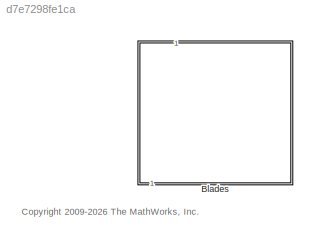
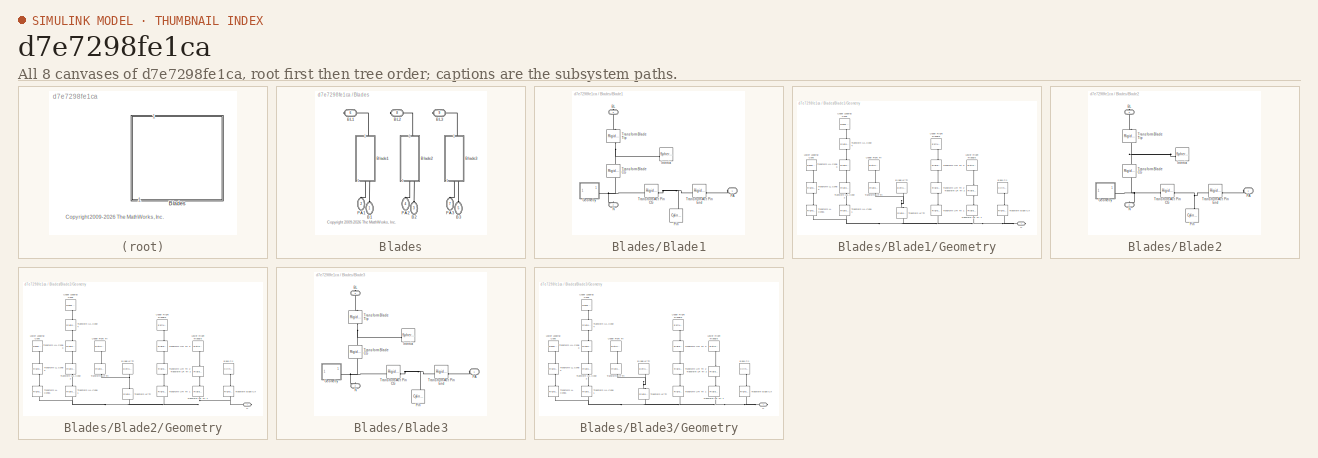
[diagram: thumbnail index - all 8 canvases of the model, root first then tree order]
MODEL slx_d7e7298fe1ca
KIND library
CONFIG EnableMultiTasking = on
CONFIG SolverName = ode45
BLOCK [SubSystem] Blades
  NameLocation = left
  ShowPortLabels = FromPortBlockName
BLOCK [PMIOPort] Blades/B1
  NameLocation = right
  Side = Left
  Tag = PMCPort
BLOCK [PMIOPort] Blades/B2
  NameLocation = right
  Port = 3
  Side = Left
  Tag = PMCPort
BLOCK [PMIOPort] Blades/B3
  NameLocation = right
  Port = 5
  Side = Left
  Tag = PMCPort
BLOCK [PMIOPort] Blades/BL1
  Port = 6
  Side = Right
  Tag = PMCPort
BLOCK [PMIOPort] Blades/BL2
  Port = 8
  Side = Right
  Tag = PMCPort
BLOCK [PMIOPort] Blades/BL3
  Port = 9
  Side = Right
  Tag = PMCPort
BLOCK [SubSystem] Blades/Blade1
  NameLocation = right
BLOCK [PMIOPort] Blades/Blade1/BL
  NameLocation = right
  Port = 3
  Side = Right
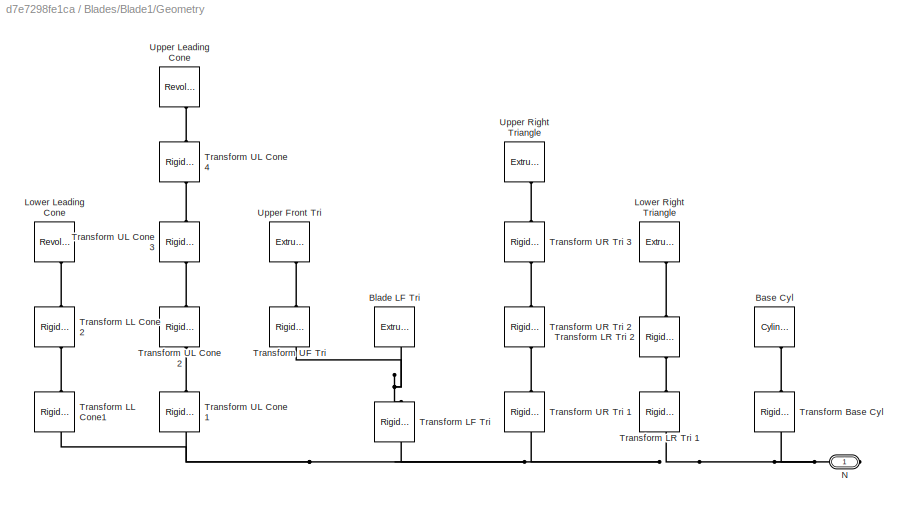
BLOCK [SubSystem] Blades/Blade1/Geometry
BLOCK [Reference] Blades/Blade1/Geometry/ Upper Leading Cone  REF=sm_lib/Body Elements/Revolved Solid
  NameLocation = left
  SourceBlock = sm_lib/Body Elements/Revolved Solid
  SourceType = Revolved Solid
BLOCK [Reference] Blades/Blade1/Geometry/Base Cyl  REF=sm_lib/Body Elements/Cylindrical Solid
  NameLocation = left
  SourceBlock = sm_lib/Body Elements/Cylindrical Solid
  SourceType = Cylindrical Solid
BLOCK [Reference] Blades/Blade1/Geometry/Blade LF Tri  REF=sm_lib/Body Elements/Extruded Solid
  NameLocation = left
  SourceBlock = sm_lib/Body Elements/Extruded Solid
  SourceType = Extruded Solid
BLOCK [Reference] Blades/Blade1/Geometry/Lower Leading Cone  REF=sm_lib/Body Elements/Revolved Solid
  NameLocation = left
  SourceBlock = sm_lib/Body Elements/Revolved Solid
  SourceType = Revolved Solid
BLOCK [Reference] Blades/Blade1/Geometry/Lower Right Triangle  REF=sm_lib/Body Elements/Extruded Solid
  NameLocation = left
  SourceBlock = sm_lib/Body Elements/Extruded Solid
  SourceType = Extruded Solid
BLOCK [PMIOPort] Blades/Blade1/Geometry/N
  Side = Right
BLOCK [Reference] Blades/Blade1/Geometry/Transform Base Cyl  REF=sm_lib/Frames and
Transforms/Rigid
Transform
  NameLocation = left
  SourceBlock = sm_lib/Frames and\nTransforms/Rigid\nTransform
  SourceType = Rigid\nTransform
BLOCK [Reference] Blades/Blade1/Geometry/Transform LF Tri  REF=sm_lib/Frames and
Transforms/Rigid
Transform
  NameLocation = left
  SourceBlock = sm_lib/Frames and\nTransforms/Rigid\nTransform
  SourceType = Rigid\nTransform
BLOCK [Reference] Blades/Blade1/Geometry/Transform LL Cone 2  REF=sm_lib/Frames and
Transforms/Rigid
Transform
  NameLocation = left
  SourceBlock = sm_lib/Frames and\nTransforms/Rigid\nTransform
  SourceType = Rigid\nTransform
BLOCK [Reference] Blades/Blade1/Geometry/Transform LL Cone1  REF=sm_lib/Frames and
Transforms/Rigid
Transform
  NameLocation = left
  SourceBlock = sm_lib/Frames and\nTransforms/Rigid\nTransform
  SourceType = Rigid\nTransform
BLOCK [Reference] Blades/Blade1/Geometry/Transform LR Tri 1  REF=sm_lib/Frames and
Transforms/Rigid
Transform
  NameLocation = left
  SourceBlock = sm_lib/Frames and\nTransforms/Rigid\nTransform
  SourceType = Rigid\nTransform
BLOCK [Reference] Blades/Blade1/Geometry/Transform LR Tri 2  REF=sm_lib/Frames and
Transforms/Rigid
Transform
  NameLocation = left
  SourceBlock = sm_lib/Frames and\nTransforms/Rigid\nTransform
  SourceType = Rigid\nTransform
BLOCK [Reference] Blades/Blade1/Geometry/Transform UF Tri  REF=sm_lib/Frames and
Transforms/Rigid
Transform
  NameLocation = left
  SourceBlock = sm_lib/Frames and\nTransforms/Rigid\nTransform
  SourceType = Rigid\nTransform
BLOCK [Reference] Blades/Blade1/Geometry/Transform UL Cone 1  REF=sm_lib/Frames and
Transforms/Rigid
Transform
  NameLocation = left
  SourceBlock = sm_lib/Frames and\nTransforms/Rigid\nTransform
  SourceType = Rigid\nTransform
BLOCK [Reference] Blades/Blade1/Geometry/Transform UL Cone 2  REF=sm_lib/Frames and
Transforms/Rigid
Transform
  NameLocation = left
  SourceBlock = sm_lib/Frames and\nTransforms/Rigid\nTransform
  SourceType = Rigid\nTransform
BLOCK [Reference] Blades/Blade1/Geometry/Transform UL Cone 3  REF=sm_lib/Frames and
Transforms/Rigid
Transform
  NameLocation = left
  SourceBlock = sm_lib/Frames and\nTransforms/Rigid\nTransform
  SourceType = Rigid\nTransform
BLOCK [Reference] Blades/Blade1/Geometry/Transform UL Cone 4  REF=sm_lib/Frames and
Transforms/Rigid
Transform
  NameLocation = left
  SourceBlock = sm_lib/Frames and\nTransforms/Rigid\nTransform
  SourceType = Rigid\nTransform
BLOCK [Reference] Blades/Blade1/Geometry/Transform UR Tri 1  REF=sm_lib/Frames and
Transforms/Rigid
Transform
  NameLocation = left
  SourceBlock = sm_lib/Frames and\nTransforms/Rigid\nTransform
  SourceType = Rigid\nTransform
BLOCK [Reference] Blades/Blade1/Geometry/Transform UR Tri 2  REF=sm_lib/Frames and
Transforms/Rigid
Transform
  NameLocation = left
  SourceBlock = sm_lib/Frames and\nTransforms/Rigid\nTransform
  SourceType = Rigid\nTransform
BLOCK [Reference] Blades/Blade1/Geometry/Transform UR Tri 3  REF=sm_lib/Frames and
Transforms/Rigid
Transform
  NameLocation = left
  SourceBlock = sm_lib/Frames and\nTransforms/Rigid\nTransform
  SourceType = Rigid\nTransform
BLOCK [Reference] Blades/Blade1/Geometry/Upper Front Tri  REF=sm_lib/Body Elements/Extruded Solid
  NameLocation = left
  SourceBlock = sm_lib/Body Elements/Extruded Solid
  SourceType = Extruded Solid
BLOCK [Reference] Blades/Blade1/Geometry/Upper Right Triangle  REF=sm_lib/Body Elements/Extruded Solid
  NameLocation = left
  SourceBlock = sm_lib/Body Elements/Extruded Solid
  SourceType = Extruded Solid
BLOCK [Reference] Blades/Blade1/Inertia  REF=sm_lib/Body Elements/Spherical Solid
  NameLocation = top
  SourceBlock = sm_lib/Body Elements/Spherical Solid
  SourceType = Spherical Solid
BLOCK [PMIOPort] Blades/Blade1/N
  NameLocation = right
  Port = 2
  Side = Left
BLOCK [PMIOPort] Blades/Blade1/PA
  Side = Left
BLOCK [Reference] Blades/Blade1/Pin  REF=sm_lib/Body Elements/Cylindrical Solid
  NameLocation = right
  SourceBlock = sm_lib/Body Elements/Cylindrical Solid
  SourceType = Cylindrical Solid
BLOCK [Reference] Blades/Blade1/Transform Act Pin CG  REF=sm_lib/Frames and
Transforms/Rigid
Transform
  SourceBlock = sm_lib/Frames and\nTransforms/Rigid\nTransform
  SourceType = Rigid\nTransform
BLOCK [Reference] Blades/Blade1/Transform Act Pin End  REF=sm_lib/Frames and
Transforms/Rigid
Transform
  SourceBlock = sm_lib/Frames and\nTransforms/Rigid\nTransform
  SourceType = Rigid\nTransform
BLOCK [Reference] Blades/Blade1/Transform Blade CG  REF=sm_lib/Frames and
Transforms/Rigid
Transform
  NameLocation = right
  SourceBlock = sm_lib/Frames and\nTransforms/Rigid\nTransform
  SourceType = Rigid\nTransform
BLOCK [Reference] Blades/Blade1/Transform Blade Tip  REF=sm_lib/Frames and
Transforms/Rigid
Transform
  NameLocation = right
  SourceBlock = sm_lib/Frames and\nTransforms/Rigid\nTransform
  SourceType = Rigid\nTransform
BLOCK [SubSystem] Blades/Blade2
  NameLocation = right
BLOCK [PMIOPort] Blades/Blade2/BL
  NameLocation = right
  Port = 3
  Side = Right
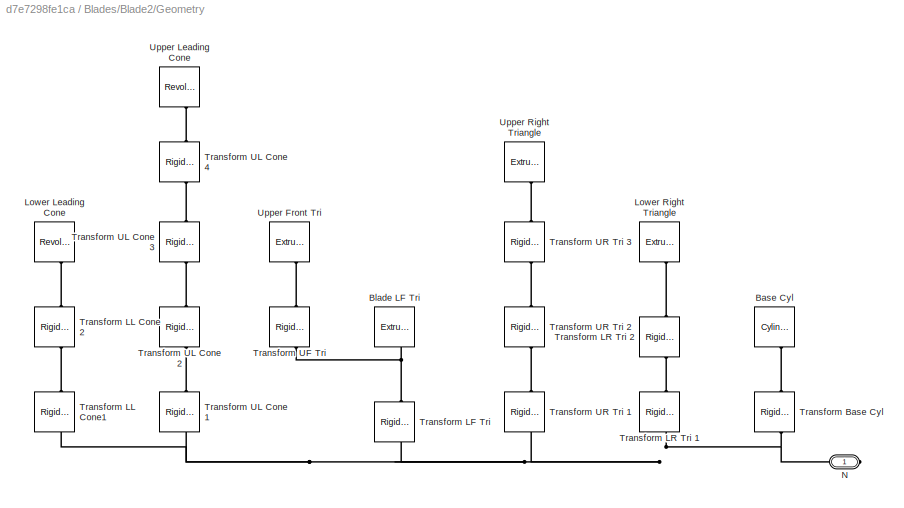
BLOCK [SubSystem] Blades/Blade2/Geometry
BLOCK [Reference] Blades/Blade2/Geometry/ Upper Leading Cone  REF=sm_lib/Body Elements/Revolved Solid
  NameLocation = left
  SourceBlock = sm_lib/Body Elements/Revolved Solid
  SourceType = Revolved Solid
BLOCK [Reference] Blades/Blade2/Geometry/Base Cyl  REF=sm_lib/Body Elements/Cylindrical Solid
  NameLocation = left
  SourceBlock = sm_lib/Body Elements/Cylindrical Solid
  SourceType = Cylindrical Solid
BLOCK [Reference] Blades/Blade2/Geometry/Blade LF Tri  REF=sm_lib/Body Elements/Extruded Solid
  NameLocation = left
  SourceBlock = sm_lib/Body Elements/Extruded Solid
  SourceType = Extruded Solid
BLOCK [Reference] Blades/Blade2/Geometry/Lower Leading Cone  REF=sm_lib/Body Elements/Revolved Solid
  NameLocation = left
  SourceBlock = sm_lib/Body Elements/Revolved Solid
  SourceType = Revolved Solid
BLOCK [Reference] Blades/Blade2/Geometry/Lower Right Triangle  REF=sm_lib/Body Elements/Extruded Solid
  NameLocation = left
  SourceBlock = sm_lib/Body Elements/Extruded Solid
  SourceType = Extruded Solid
BLOCK [PMIOPort] Blades/Blade2/Geometry/N
  Side = Right
BLOCK [Reference] Blades/Blade2/Geometry/Transform Base Cyl  REF=sm_lib/Frames and
Transforms/Rigid
Transform
  NameLocation = left
  SourceBlock = sm_lib/Frames and\nTransforms/Rigid\nTransform
  SourceType = Rigid\nTransform
BLOCK [Reference] Blades/Blade2/Geometry/Transform LF Tri  REF=sm_lib/Frames and
Transforms/Rigid
Transform
  NameLocation = left
  SourceBlock = sm_lib/Frames and\nTransforms/Rigid\nTransform
  SourceType = Rigid\nTransform
BLOCK [Reference] Blades/Blade2/Geometry/Transform LL Cone 2  REF=sm_lib/Frames and
Transforms/Rigid
Transform
  NameLocation = left
  SourceBlock = sm_lib/Frames and\nTransforms/Rigid\nTransform
  SourceType = Rigid\nTransform
BLOCK [Reference] Blades/Blade2/Geometry/Transform LL Cone1  REF=sm_lib/Frames and
Transforms/Rigid
Transform
  NameLocation = left
  SourceBlock = sm_lib/Frames and\nTransforms/Rigid\nTransform
  SourceType = Rigid\nTransform
BLOCK [Reference] Blades/Blade2/Geometry/Transform LR Tri 1  REF=sm_lib/Frames and
Transforms/Rigid
Transform
  NameLocation = left
  SourceBlock = sm_lib/Frames and\nTransforms/Rigid\nTransform
  SourceType = Rigid\nTransform
BLOCK [Reference] Blades/Blade2/Geometry/Transform LR Tri 2  REF=sm_lib/Frames and
Transforms/Rigid
Transform
  NameLocation = left
  SourceBlock = sm_lib/Frames and\nTransforms/Rigid\nTransform
  SourceType = Rigid\nTransform
BLOCK [Reference] Blades/Blade2/Geometry/Transform UF Tri  REF=sm_lib/Frames and
Transforms/Rigid
Transform
  NameLocation = left
  SourceBlock = sm_lib/Frames and\nTransforms/Rigid\nTransform
  SourceType = Rigid\nTransform
BLOCK [Reference] Blades/Blade2/Geometry/Transform UL Cone 1  REF=sm_lib/Frames and
Transforms/Rigid
Transform
  NameLocation = left
  SourceBlock = sm_lib/Frames and\nTransforms/Rigid\nTransform
  SourceType = Rigid\nTransform
BLOCK [Reference] Blades/Blade2/Geometry/Transform UL Cone 2  REF=sm_lib/Frames and
Transforms/Rigid
Transform
  NameLocation = left
  SourceBlock = sm_lib/Frames and\nTransforms/Rigid\nTransform
  SourceType = Rigid\nTransform
BLOCK [Reference] Blades/Blade2/Geometry/Transform UL Cone 3  REF=sm_lib/Frames and
Transforms/Rigid
Transform
  NameLocation = left
  SourceBlock = sm_lib/Frames and\nTransforms/Rigid\nTransform
  SourceType = Rigid\nTransform
BLOCK [Reference] Blades/Blade2/Geometry/Transform UL Cone 4  REF=sm_lib/Frames and
Transforms/Rigid
Transform
  NameLocation = left
  SourceBlock = sm_lib/Frames and\nTransforms/Rigid\nTransform
  SourceType = Rigid\nTransform
BLOCK [Reference] Blades/Blade2/Geometry/Transform UR Tri 1  REF=sm_lib/Frames and
Transforms/Rigid
Transform
  NameLocation = left
  SourceBlock = sm_lib/Frames and\nTransforms/Rigid\nTransform
  SourceType = Rigid\nTransform
BLOCK [Reference] Blades/Blade2/Geometry/Transform UR Tri 2  REF=sm_lib/Frames and
Transforms/Rigid
Transform
  NameLocation = left
  SourceBlock = sm_lib/Frames and\nTransforms/Rigid\nTransform
  SourceType = Rigid\nTransform
BLOCK [Reference] Blades/Blade2/Geometry/Transform UR Tri 3  REF=sm_lib/Frames and
Transforms/Rigid
Transform
  NameLocation = left
  SourceBlock = sm_lib/Frames and\nTransforms/Rigid\nTransform
  SourceType = Rigid\nTransform
BLOCK [Reference] Blades/Blade2/Geometry/Upper Front Tri  REF=sm_lib/Body Elements/Extruded Solid
  NameLocation = left
  SourceBlock = sm_lib/Body Elements/Extruded Solid
  SourceType = Extruded Solid
BLOCK [Reference] Blades/Blade2/Geometry/Upper Right Triangle  REF=sm_lib/Body Elements/Extruded Solid
  NameLocation = left
  SourceBlock = sm_lib/Body Elements/Extruded Solid
  SourceType = Extruded Solid
BLOCK [Reference] Blades/Blade2/Inertia  REF=sm_lib/Body Elements/Spherical Solid
  NameLocation = top
  SourceBlock = sm_lib/Body Elements/Spherical Solid
  SourceType = Spherical Solid
BLOCK [PMIOPort] Blades/Blade2/N
  NameLocation = right
  Port = 2
  Side = Left
BLOCK [PMIOPort] Blades/Blade2/PA
  Side = Left
BLOCK [Reference] Blades/Blade2/Pin  REF=sm_lib/Body Elements/Cylindrical Solid
  NameLocation = right
  SourceBlock = sm_lib/Body Elements/Cylindrical Solid
  SourceType = Cylindrical Solid
BLOCK [Reference] Blades/Blade2/Transform Act Pin CG  REF=sm_lib/Frames and
Transforms/Rigid
Transform
  SourceBlock = sm_lib/Frames and\nTransforms/Rigid\nTransform
  SourceType = Rigid\nTransform
BLOCK [Reference] Blades/Blade2/Transform Act Pin End  REF=sm_lib/Frames and
Transforms/Rigid
Transform
  SourceBlock = sm_lib/Frames and\nTransforms/Rigid\nTransform
  SourceType = Rigid\nTransform
BLOCK [Reference] Blades/Blade2/Transform Blade CG  REF=sm_lib/Frames and
Transforms/Rigid
Transform
  NameLocation = right
  SourceBlock = sm_lib/Frames and\nTransforms/Rigid\nTransform
  SourceType = Rigid\nTransform
BLOCK [Reference] Blades/Blade2/Transform Blade Tip  REF=sm_lib/Frames and
Transforms/Rigid
Transform
  NameLocation = right
  SourceBlock = sm_lib/Frames and\nTransforms/Rigid\nTransform
  SourceType = Rigid\nTransform
BLOCK [SubSystem] Blades/Blade3
  NameLocation = right
BLOCK [PMIOPort] Blades/Blade3/BL
  NameLocation = right
  Port = 3
  Side = Right
BLOCK [SubSystem] Blades/Blade3/Geometry
BLOCK [Reference] Blades/Blade3/Geometry/ Upper Leading Cone  REF=sm_lib/Body Elements/Revolved Solid
  NameLocation = left
  SourceBlock = sm_lib/Body Elements/Revolved Solid
  SourceType = Revolved Solid
BLOCK [Reference] Blades/Blade3/Geometry/Base Cyl  REF=sm_lib/Body Elements/Cylindrical Solid
  NameLocation = left
  SourceBlock = sm_lib/Body Elements/Cylindrical Solid
  SourceType = Cylindrical Solid
BLOCK [Reference] Blades/Blade3/Geometry/Blade LF Tri  REF=sm_lib/Body Elements/Extruded Solid
  NameLocation = left
  SourceBlock = sm_lib/Body Elements/Extruded Solid
  SourceType = Extruded Solid
BLOCK [Reference] Blades/Blade3/Geometry/Lower Leading Cone  REF=sm_lib/Body Elements/Revolved Solid
  NameLocation = left
  SourceBlock = sm_lib/Body Elements/Revolved Solid
  SourceType = Revolved Solid
BLOCK [Reference] Blades/Blade3/Geometry/Lower Right Triangle  REF=sm_lib/Body Elements/Extruded Solid
  NameLocation = left
  SourceBlock = sm_lib/Body Elements/Extruded Solid
  SourceType = Extruded Solid
BLOCK [PMIOPort] Blades/Blade3/Geometry/N
  Side = Right
BLOCK [Reference] Blades/Blade3/Geometry/Transform Base Cyl  REF=sm_lib/Frames and
Transforms/Rigid
Transform
  NameLocation = left
  SourceBlock = sm_lib/Frames and\nTransforms/Rigid\nTransform
  SourceType = Rigid\nTransform
BLOCK [Reference] Blades/Blade3/Geometry/Transform LF Tri  REF=sm_lib/Frames and
Transforms/Rigid
Transform
  NameLocation = left
  SourceBlock = sm_lib/Frames and\nTransforms/Rigid\nTransform
  SourceType = Rigid\nTransform
BLOCK [Reference] Blades/Blade3/Geometry/Transform LL Cone 2  REF=sm_lib/Frames and
Transforms/Rigid
Transform
  NameLocation = left
  SourceBlock = sm_lib/Frames and\nTransforms/Rigid\nTransform
  SourceType = Rigid\nTransform
BLOCK [Reference] Blades/Blade3/Geometry/Transform LL Cone1  REF=sm_lib/Frames and
Transforms/Rigid
Transform
  NameLocation = left
  SourceBlock = sm_lib/Frames and\nTransforms/Rigid\nTransform
  SourceType = Rigid\nTransform
BLOCK [Reference] Blades/Blade3/Geometry/Transform LR Tri 1  REF=sm_lib/Frames and
Transforms/Rigid
Transform
  NameLocation = left
  SourceBlock = sm_lib/Frames and\nTransforms/Rigid\nTransform
  SourceType = Rigid\nTransform
BLOCK [Reference] Blades/Blade3/Geometry/Transform LR Tri 2  REF=sm_lib/Frames and
Transforms/Rigid
Transform
  NameLocation = left
  SourceBlock = sm_lib/Frames and\nTransforms/Rigid\nTransform
  SourceType = Rigid\nTransform
BLOCK [Reference] Blades/Blade3/Geometry/Transform UF Tri  REF=sm_lib/Frames and
Transforms/Rigid
Transform
  NameLocation = left
  SourceBlock = sm_lib/Frames and\nTransforms/Rigid\nTransform
  SourceType = Rigid\nTransform
BLOCK [Reference] Blades/Blade3/Geometry/Transform UL Cone 1  REF=sm_lib/Frames and
Transforms/Rigid
Transform
  NameLocation = left
  SourceBlock = sm_lib/Frames and\nTransforms/Rigid\nTransform
  SourceType = Rigid\nTransform
BLOCK [Reference] Blades/Blade3/Geometry/Transform UL Cone 2  REF=sm_lib/Frames and
Transforms/Rigid
Transform
  NameLocation = left
  SourceBlock = sm_lib/Frames and\nTransforms/Rigid\nTransform
  SourceType = Rigid\nTransform
BLOCK [Reference] Blades/Blade3/Geometry/Transform UL Cone 3  REF=sm_lib/Frames and
Transforms/Rigid
Transform
  NameLocation = left
  SourceBlock = sm_lib/Frames and\nTransforms/Rigid\nTransform
  SourceType = Rigid\nTransform
BLOCK [Reference] Blades/Blade3/Geometry/Transform UL Cone 4  REF=sm_lib/Frames and
Transforms/Rigid
Transform
  NameLocation = left
  SourceBlock = sm_lib/Frames and\nTransforms/Rigid\nTransform
  SourceType = Rigid\nTransform
BLOCK [Reference] Blades/Blade3/Geometry/Transform UR Tri 1  REF=sm_lib/Frames and
Transforms/Rigid
Transform
  NameLocation = left
  SourceBlock = sm_lib/Frames and\nTransforms/Rigid\nTransform
  SourceType = Rigid\nTransform
BLOCK [Reference] Blades/Blade3/Geometry/Transform UR Tri 2  REF=sm_lib/Frames and
Transforms/Rigid
Transform
  NameLocation = left
  SourceBlock = sm_lib/Frames and\nTransforms/Rigid\nTransform
  SourceType = Rigid\nTransform
BLOCK [Reference] Blades/Blade3/Geometry/Transform UR Tri 3  REF=sm_lib/Frames and
Transforms/Rigid
Transform
  NameLocation = left
  SourceBlock = sm_lib/Frames and\nTransforms/Rigid\nTransform
  SourceType = Rigid\nTransform
BLOCK [Reference] Blades/Blade3/Geometry/Upper Front Tri  REF=sm_lib/Body Elements/Extruded Solid
  NameLocation = left
  SourceBlock = sm_lib/Body Elements/Extruded Solid
  SourceType = Extruded Solid
BLOCK [Reference] Blades/Blade3/Geometry/Upper Right Triangle  REF=sm_lib/Body Elements/Extruded Solid
  NameLocation = left
  SourceBlock = sm_lib/Body Elements/Extruded Solid
  SourceType = Extruded Solid
BLOCK [Reference] Blades/Blade3/Inertia  REF=sm_lib/Body Elements/Spherical Solid
  NameLocation = top
  SourceBlock = sm_lib/Body Elements/Spherical Solid
  SourceType = Spherical Solid
BLOCK [PMIOPort] Blades/Blade3/N
  NameLocation = right
  Port = 2
  Side = Left
BLOCK [PMIOPort] Blades/Blade3/PA
  Side = Left
BLOCK [Reference] Blades/Blade3/Pin  REF=sm_lib/Body Elements/Cylindrical Solid
  NameLocation = right
  SourceBlock = sm_lib/Body Elements/Cylindrical Solid
  SourceType = Cylindrical Solid
BLOCK [Reference] Blades/Blade3/Transform Act Pin CG  REF=sm_lib/Frames and
Transforms/Rigid
Transform
  SourceBlock = sm_lib/Frames and\nTransforms/Rigid\nTransform
  SourceType = Rigid\nTransform
BLOCK [Reference] Blades/Blade3/Transform Act Pin End  REF=sm_lib/Frames and
Transforms/Rigid
Transform
  SourceBlock = sm_lib/Frames and\nTransforms/Rigid\nTransform
  SourceType = Rigid\nTransform
BLOCK [Reference] Blades/Blade3/Transform Blade CG  REF=sm_lib/Frames and
Transforms/Rigid
Transform
  NameLocation = right
  SourceBlock = sm_lib/Frames and\nTransforms/Rigid\nTransform
  SourceType = Rigid\nTransform
BLOCK [Reference] Blades/Blade3/Transform Blade Tip  REF=sm_lib/Frames and
Transforms/Rigid
Transform
  NameLocation = right
  SourceBlock = sm_lib/Frames and\nTransforms/Rigid\nTransform
  SourceType = Rigid\nTransform
BLOCK [PMIOPort] Blades/PA1
  NameLocation = left
  Port = 2
  Side = Left
  Tag = PMCPort
BLOCK [PMIOPort] Blades/PA2
  NameLocation = left
  Port = 4
  Side = Left
  Tag = PMCPort
BLOCK [PMIOPort] Blades/PA3
  NameLocation = left
  Port = 7
  Side = Left
  Tag = PMCPort
ANNOTATION (root): <copyright redacted>
ANNOTATION Blades: <copyright redacted>
PLINE Blades/B1:RConn1 -- Blades/Blade1:LConn2
PLINE Blades/B2:RConn1 -- Blades/Blade2:LConn2
PLINE Blades/B3:RConn1 -- Blades/Blade3:LConn2
PLINE Blades/BL1:RConn1 -- Blades/Blade1:RConn1
PLINE Blades/BL2:RConn1 -- Blades/Blade2:RConn1
PLINE Blades/BL3:RConn1 -- Blades/Blade3:RConn1
PLINE Blades/Blade1/BL:RConn1 -- Blades/Blade1/Transform Blade Tip:RConn1
PLINE Blades/Blade1/Geometry/ Upper Leading Cone:RConn1 -- Blades/Blade1/Geometry/Transform UL Cone 4:RConn1
PLINE Blades/Blade1/Geometry/Base Cyl:RConn1 -- Blades/Blade1/Geometry/Transform Base Cyl:RConn1
PNET net1: Blades/Blade1/Geometry/Blade LF Tri:RConn1 -- Blades/Blade1/Geometry/Transform LF Tri:RConn1 -- Blades/Blade1/Geometry/Transform UF Tri:LConn1
PLINE Blades/Blade1/Geometry/Lower Leading Cone:RConn1 -- Blades/Blade1/Geometry/Transform LL Cone 2:RConn1
PLINE Blades/Blade1/Geometry/Lower Right Triangle:RConn1 -- Blades/Blade1/Geometry/Transform LR Tri 2:RConn1
PNET net2: Blades/Blade1/Geometry/N:RConn1 -- Blades/Blade1/Geometry/Transform Base Cyl:LConn1 -- Blades/Blade1/Geometry/Transform LF Tri:LConn1 -- Blades/Blade1/Geometry/Transform LL Cone1:LConn1 -- Blades/Blade1/Geometry/Transform LR Tri 1:LConn1 -- Blades/Blade1/Geometry/Transform UL Cone 1:LConn1 -- Blades/Blade1/Geometry/Transform UR Tri 1:LConn1
PLINE Blades/Blade1/Geometry/Transform LL Cone 2:LConn1 -- Blades/Blade1/Geometry/Transform LL Cone1:RConn1
PLINE Blades/Blade1/Geometry/Transform LR Tri 1:RConn1 -- Blades/Blade1/Geometry/Transform LR Tri 2:LConn1
PLINE Blades/Blade1/Geometry/Transform UF Tri:RConn1 -- Blades/Blade1/Geometry/Upper Front Tri:RConn1
PLINE Blades/Blade1/Geometry/Transform UL Cone 1:RConn1 -- Blades/Blade1/Geometry/Transform UL Cone 2:LConn1
PLINE Blades/Blade1/Geometry/Transform UL Cone 2:RConn1 -- Blades/Blade1/Geometry/Transform UL Cone 3:LConn1
PLINE Blades/Blade1/Geometry/Transform UL Cone 3:RConn1 -- Blades/Blade1/Geometry/Transform UL Cone 4:LConn1
PLINE Blades/Blade1/Geometry/Transform UR Tri 1:RConn1 -- Blades/Blade1/Geometry/Transform UR Tri 2:LConn1
PLINE Blades/Blade1/Geometry/Transform UR Tri 2:RConn1 -- Blades/Blade1/Geometry/Transform UR Tri 3:LConn1
PLINE Blades/Blade1/Geometry/Transform UR Tri 3:RConn1 -- Blades/Blade1/Geometry/Upper Right Triangle:RConn1
PNET net3: Blades/Blade1/Geometry:RConn1 -- Blades/Blade1/N:RConn1 -- Blades/Blade1/Transform Act Pin CG:LConn1 -- Blades/Blade1/Transform Blade CG:LConn1
PNET net4: Blades/Blade1/Inertia:RConn1 -- Blades/Blade1/Transform Blade CG:RConn1 -- Blades/Blade1/Transform Blade Tip:LConn1
PLINE Blades/Blade1/PA:RConn1 -- Blades/Blade1/Transform Act Pin End:RConn1
PNET net5: Blades/Blade1/Pin:RConn1 -- Blades/Blade1/Transform Act Pin CG:RConn1 -- Blades/Blade1/Transform Act Pin End:LConn1
PLINE Blades/Blade1:LConn1 -- Blades/PA1:RConn1
PLINE Blades/Blade2/BL:RConn1 -- Blades/Blade2/Transform Blade Tip:RConn1
PLINE Blades/Blade2/Geometry/ Upper Leading Cone:RConn1 -- Blades/Blade2/Geometry/Transform UL Cone 4:RConn1
PLINE Blades/Blade2/Geometry/Base Cyl:RConn1 -- Blades/Blade2/Geometry/Transform Base Cyl:RConn1
PNET net6: Blades/Blade2/Geometry/Blade LF Tri:RConn1 -- Blades/Blade2/Geometry/Transform LF Tri:RConn1 -- Blades/Blade2/Geometry/Transform UF Tri:LConn1
PLINE Blades/Blade2/Geometry/Lower Leading Cone:RConn1 -- Blades/Blade2/Geometry/Transform LL Cone 2:RConn1
PLINE Blades/Blade2/Geometry/Lower Right Triangle:RConn1 -- Blades/Blade2/Geometry/Transform LR Tri 2:RConn1
PNET net7: Blades/Blade2/Geometry/N:RConn1 -- Blades/Blade2/Geometry/Transform Base Cyl:LConn1 -- Blades/Blade2/Geometry/Transform LF Tri:LConn1 -- Blades/Blade2/Geometry/Transform LL Cone1:LConn1 -- Blades/Blade2/Geometry/Transform LR Tri 1:LConn1 -- Blades/Blade2/Geometry/Transform UL Cone 1:LConn1 -- Blades/Blade2/Geometry/Transform UR Tri 1:LConn1
PLINE Blades/Blade2/Geometry/Transform LL Cone 2:LConn1 -- Blades/Blade2/Geometry/Transform LL Cone1:RConn1
PLINE Blades/Blade2/Geometry/Transform LR Tri 1:RConn1 -- Blades/Blade2/Geometry/Transform LR Tri 2:LConn1
PLINE Blades/Blade2/Geometry/Transform UF Tri:RConn1 -- Blades/Blade2/Geometry/Upper Front Tri:RConn1
PLINE Blades/Blade2/Geometry/Transform UL Cone 1:RConn1 -- Blades/Blade2/Geometry/Transform UL Cone 2:LConn1
PLINE Blades/Blade2/Geometry/Transform UL Cone 2:RConn1 -- Blades/Blade2/Geometry/Transform UL Cone 3:LConn1
PLINE Blades/Blade2/Geometry/Transform UL Cone 3:RConn1 -- Blades/Blade2/Geometry/Transform UL Cone 4:LConn1
PLINE Blades/Blade2/Geometry/Transform UR Tri 1:RConn1 -- Blades/Blade2/Geometry/Transform UR Tri 2:LConn1
PLINE Blades/Blade2/Geometry/Transform UR Tri 2:RConn1 -- Blades/Blade2/Geometry/Transform UR Tri 3:LConn1
PLINE Blades/Blade2/Geometry/Transform UR Tri 3:RConn1 -- Blades/Blade2/Geometry/Upper Right Triangle:RConn1
PNET net8: Blades/Blade2/Geometry:RConn1 -- Blades/Blade2/N:RConn1 -- Blades/Blade2/Transform Act Pin CG:LConn1 -- Blades/Blade2/Transform Blade CG:LConn1
PNET net9: Blades/Blade2/Inertia:RConn1 -- Blades/Blade2/Transform Blade CG:RConn1 -- Blades/Blade2/Transform Blade Tip:LConn1
PLINE Blades/Blade2/PA:RConn1 -- Blades/Blade2/Transform Act Pin End:RConn1
PNET net10: Blades/Blade2/Pin:RConn1 -- Blades/Blade2/Transform Act Pin CG:RConn1 -- Blades/Blade2/Transform Act Pin End:LConn1
PLINE Blades/Blade2:LConn1 -- Blades/PA2:RConn1
PLINE Blades/Blade3/BL:RConn1 -- Blades/Blade3/Transform Blade Tip:RConn1
PLINE Blades/Blade3/Geometry/ Upper Leading Cone:RConn1 -- Blades/Blade3/Geometry/Transform UL Cone 4:RConn1
PLINE Blades/Blade3/Geometry/Base Cyl:RConn1 -- Blades/Blade3/Geometry/Transform Base Cyl:RConn1
PNET net11: Blades/Blade3/Geometry/Blade LF Tri:RConn1 -- Blades/Blade3/Geometry/Transform LF Tri:RConn1 -- Blades/Blade3/Geometry/Transform UF Tri:LConn1
PLINE Blades/Blade3/Geometry/Lower Leading Cone:RConn1 -- Blades/Blade3/Geometry/Transform LL Cone 2:RConn1
PLINE Blades/Blade3/Geometry/Lower Right Triangle:RConn1 -- Blades/Blade3/Geometry/Transform LR Tri 2:RConn1
PNET net12: Blades/Blade3/Geometry/N:RConn1 -- Blades/Blade3/Geometry/Transform Base Cyl:LConn1 -- Blades/Blade3/Geometry/Transform LF Tri:LConn1 -- Blades/Blade3/Geometry/Transform LL Cone1:LConn1 -- Blades/Blade3/Geometry/Transform LR Tri 1:LConn1 -- Blades/Blade3/Geometry/Transform UL Cone 1:LConn1 -- Blades/Blade3/Geometry/Transform UR Tri 1:LConn1
PLINE Blades/Blade3/Geometry/Transform LL Cone 2:LConn1 -- Blades/Blade3/Geometry/Transform LL Cone1:RConn1
PLINE Blades/Blade3/Geometry/Transform LR Tri 1:RConn1 -- Blades/Blade3/Geometry/Transform LR Tri 2:LConn1
PLINE Blades/Blade3/Geometry/Transform UF Tri:RConn1 -- Blades/Blade3/Geometry/Upper Front Tri:RConn1
PLINE Blades/Blade3/Geometry/Transform UL Cone 1:RConn1 -- Blades/Blade3/Geometry/Transform UL Cone 2:LConn1
PLINE Blades/Blade3/Geometry/Transform UL Cone 2:RConn1 -- Blades/Blade3/Geometry/Transform UL Cone 3:LConn1
PLINE Blades/Blade3/Geometry/Transform UL Cone 3:RConn1 -- Blades/Blade3/Geometry/Transform UL Cone 4:LConn1
PLINE Blades/Blade3/Geometry/Transform UR Tri 1:RConn1 -- Blades/Blade3/Geometry/Transform UR Tri 2:LConn1
PLINE Blades/Blade3/Geometry/Transform UR Tri 2:RConn1 -- Blades/Blade3/Geometry/Transform UR Tri 3:LConn1
PLINE Blades/Blade3/Geometry/Transform UR Tri 3:RConn1 -- Blades/Blade3/Geometry/Upper Right Triangle:RConn1
PNET net13: Blades/Blade3/Geometry:RConn1 -- Blades/Blade3/N:RConn1 -- Blades/Blade3/Transform Act Pin CG:LConn1 -- Blades/Blade3/Transform Blade CG:LConn1
PNET net14: Blades/Blade3/Inertia:RConn1 -- Blades/Blade3/Transform Blade CG:RConn1 -- Blades/Blade3/Transform Blade Tip:LConn1
PLINE Blades/Blade3/PA:RConn1 -- Blades/Blade3/Transform Act Pin End:RConn1
PNET net15: Blades/Blade3/Pin:RConn1 -- Blades/Blade3/Transform Act Pin CG:RConn1 -- Blades/Blade3/Transform Act Pin End:LConn1
PLINE Blades/Blade3:LConn1 -- Blades/PA3:RConn1
note: PNET lines group multi-terminal physical nets as a canonical sorted terminal list (undirected conserving connections); 2-terminal nets keep the pairwise PLINE form
